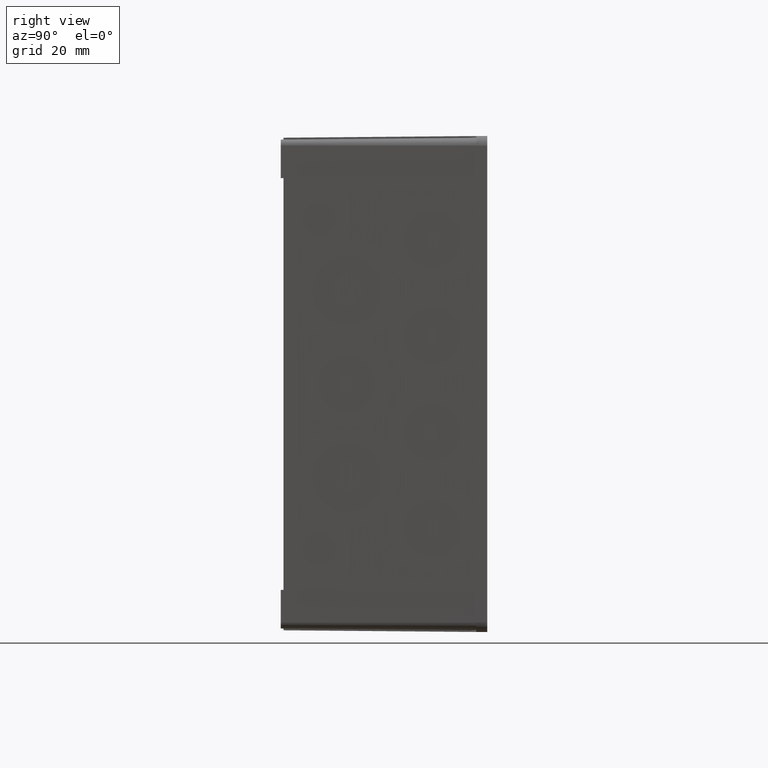
[diagram: clean part render]
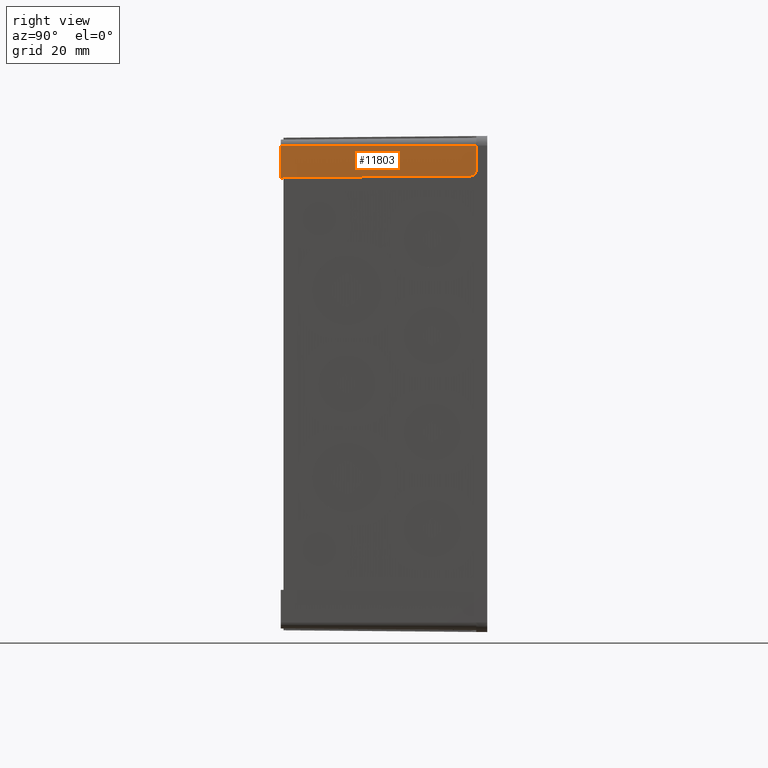
[diagram: same view with one face highlighted and labeled with its STEP entity id]
A machine part, right view. The second image highlights one B-rep face of the part: STEP entity #11803.
In plain terms, the highlighted planar face has unit normal (-1, 0.0087, 0).
Its self-contained STEP definition (entity closure, byte-faithful):
#290 = LINE ( 'NONE', #6791, #2974 ) ;
#396 = LINE ( 'NONE', #8552, #2633 ) ;
#495 = CARTESIAN_POINT ( 'NONE',  ( 89.35000000000000900, -4.000000000000000000, 86.54999999999995500 ) ) ;
#519 = EDGE_LOOP ( 'NONE', ( #9844, #1866, #1669, #6513, #7155, #6318, #1193 ) ) ;
#668 = VERTEX_POINT ( 'NONE', #12134 ) ;
#1193 = ORIENTED_EDGE ( 'NONE', *, *, #10441, .T. ) ;
#1488 = CARTESIAN_POINT ( 'NONE',  ( 89.34999999999995200, -4.000000000000000000, 75.54999999999999700 ) ) ;
#1636 = DIRECTION ( 'NONE',  ( 0.008726203243944194800, 0.9999238504775704900, -0.008726203243944236400 ) ) ;
#1669 = ORIENTED_EDGE ( 'NONE', *, *, #9486, .T. ) ;
#1866 = ORIENTED_EDGE ( 'NONE', *, *, #9192, .T. ) ;
#1944 = LINE ( 'NONE', #8144, #10984 ) ;
#2338 = LINE ( 'NONE', #8397, #7459 ) ;
#2633 = VECTOR ( 'NONE', #2714, 1000.000000000000000 ) ;
#2714 = DIRECTION ( 'NONE',  ( 0.008726535498373953800, 0.9999619230641713100, -4.403818470683436100E-017 ) ) ;
#2863 = CARTESIAN_POINT ( 'NONE',  ( 89.34285174598578300, -4.819108778265551500, 75.54285174598582800 ) ) ;
#2889 =( BOUNDED_CURVE ( )  B_SPLINE_CURVE ( 3, ( #2944, #2863, #6823, #7847 ),
 .UNSPECIFIED., .F., .F. ) 
 B_SPLINE_CURVE_WITH_KNOTS ( ( 4, 4 ),
 ( 4.721115626644372100, 6.283185307179296700 ),
 .UNSPECIFIED. ) 
 CURVE ( )  GEOMETRIC_REPRESENTATION_ITEM ( )  RATIONAL_B_SPLINE_CURVE ( ( 1.000000000000000000, 0.8067902504155235500, 0.8067902504155235500, 1.000000000000000000 ) ) 
 REPRESENTATION_ITEM ( '' )  );
#2944 = CARTESIAN_POINT ( 'NONE',  ( 89.33269857506157100, -5.982546929003253100, 75.53269857506160200 ) ) ;
#2974 = VECTOR ( 'NONE', #5974, 1000.000000000000000 ) ;
#3049 = CARTESIAN_POINT ( 'NONE',  ( 88.73039238685608200, -75.00000000000000000, 74.74784612243762200 ) ) ;
#3395 = FACE_OUTER_BOUND ( 'NONE', #519, .T. ) ;
#3570 = EDGE_CURVE ( 'NONE', #9777, #12026, #2338, .T. ) ;
#4294 = PLANE ( 'NONE',  #7898 ) ;
#4602 = DIRECTION ( 'NONE',  ( 4.700000992991000500E-015, -0.0000000000000000000, 1.000000000000000000 ) ) ;
#5523 = LINE ( 'NONE', #1488, #5815 ) ;
#5815 = VECTOR ( 'NONE', #6317, 1000.000000000000100 ) ;
#5974 = DIRECTION ( 'NONE',  ( 4.700000992991000500E-015, 0.0000000000000000000, 1.000000000000000000 ) ) ;
#6190 = DIRECTION ( 'NONE',  ( -0.9999619230641713100, 0.008726535498373953800, 5.046276139701343900E-015 ) ) ;
#6317 = DIRECTION ( 'NONE',  ( 0.008726203243944278100, 0.9999238504775704900, 0.008726203243944215600 ) ) ;
#6318 = ORIENTED_EDGE ( 'NONE', *, *, #3570, .T. ) ;
#6513 = ORIENTED_EDGE ( 'NONE', *, *, #6910, .F. ) ;
#6520 = CARTESIAN_POINT ( 'NONE',  ( 88.73039238685612400, -75.00000000000000000, 86.54999999999995500 ) ) ;
#6791 = CARTESIAN_POINT ( 'NONE',  ( 88.73911925464683700, -74.00000000000000000, 74.73911925464686600 ) ) ;
#6823 = CARTESIAN_POINT ( 'NONE',  ( 89.34999999999995200, -4.000000000000000900, 76.36913996860558000 ) ) ;
#6873 = CARTESIAN_POINT ( 'NONE',  ( 89.33269857506157100, -5.982546929003253100, 75.53269857506160200 ) ) ;
#6910 = EDGE_CURVE ( 'NONE', #11452, #668, #396, .T. ) ;
#7155 = ORIENTED_EDGE ( 'NONE', *, *, #8707, .F. ) ;
#7208 = DIRECTION ( 'NONE',  ( 5.046468293750726400E-015, -0.0000000000000000000, 1.000000000000000000 ) ) ;
#7459 = VECTOR ( 'NONE', #1636, 1000.000000000000100 ) ;
#7847 = CARTESIAN_POINT ( 'NONE',  ( 89.34999999999996600, -4.000000000000000000, 77.53262242118995600 ) ) ;
#7898 = AXIS2_PLACEMENT_3D ( 'NONE', #495, #6190, #9034 ) ;
#8144 = CARTESIAN_POINT ( 'NONE',  ( 89.35000000000000900, -4.000000000000000000, 86.54999999999995500 ) ) ;
#8397 = CARTESIAN_POINT ( 'NONE',  ( 88.73911925464683700, -74.00000000000000000, 74.73911925464686600 ) ) ;
#8552 = CARTESIAN_POINT ( 'NONE',  ( 89.35000000000000900, -4.000000000000000000, 86.54999999999995500 ) ) ;
#8707 = EDGE_CURVE ( 'NONE', #9777, #11452, #9234, .T. ) ;
#8756 = VERTEX_POINT ( 'NONE', #8864 ) ;
#8864 = CARTESIAN_POINT ( 'NONE',  ( 89.34999999999996600, -4.000000000000000000, 77.53262242118995600 ) ) ;
#9034 = DIRECTION ( 'NONE',  ( -0.008726535498373953800, -0.9999619230641713100, 0.0000000000000000000 ) ) ;
#9192 = EDGE_CURVE ( 'NONE', #12187, #8756, #2889, .T. ) ;
#9234 = LINE ( 'NONE', #10063, #11774 ) ;
#9235 = CARTESIAN_POINT ( 'NONE',  ( 88.73911925464683700, -74.00000000000000000, 74.93911925464686900 ) ) ;
#9486 = EDGE_CURVE ( 'NONE', #8756, #668, #1944, .T. ) ;
#9492 = CARTESIAN_POINT ( 'NONE',  ( 88.73911925464683700, -74.00000000000000000, 74.73911925464686600 ) ) ;
#9777 = VERTEX_POINT ( 'NONE', #3049 ) ;
#9844 = ORIENTED_EDGE ( 'NONE', *, *, #11825, .T. ) ;
#10063 = CARTESIAN_POINT ( 'NONE',  ( 88.73039238685608200, -75.00000000000000000, 74.73911925464686600 ) ) ;
#10441 = EDGE_CURVE ( 'NONE', #12026, #11343, #290, .T. ) ;
#10984 = VECTOR ( 'NONE', #7208, 1000.000000000000000 ) ;
#11343 = VERTEX_POINT ( 'NONE', #9235 ) ;
#11452 = VERTEX_POINT ( 'NONE', #6520 ) ;
#11774 = VECTOR ( 'NONE', #4602, 1000.000000000000000 ) ;
#11803 = ADVANCED_FACE ( 'NONE', ( #3395 ), #4294, .F. ) ;
#11825 = EDGE_CURVE ( 'NONE', #11343, #12187, #5523, .T. ) ;
#12026 = VERTEX_POINT ( 'NONE', #9492 ) ;
#12134 = CARTESIAN_POINT ( 'NONE',  ( 89.35000000000000900, -4.000000000000000000, 86.54999999999995500 ) ) ;
#12187 = VERTEX_POINT ( 'NONE', #6873 ) ;